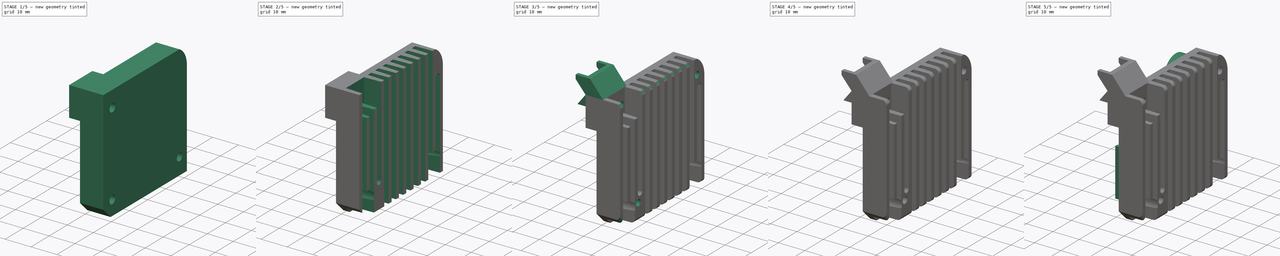
[diagram: build sequence overview — one tinted view per stage of 5, left to right]
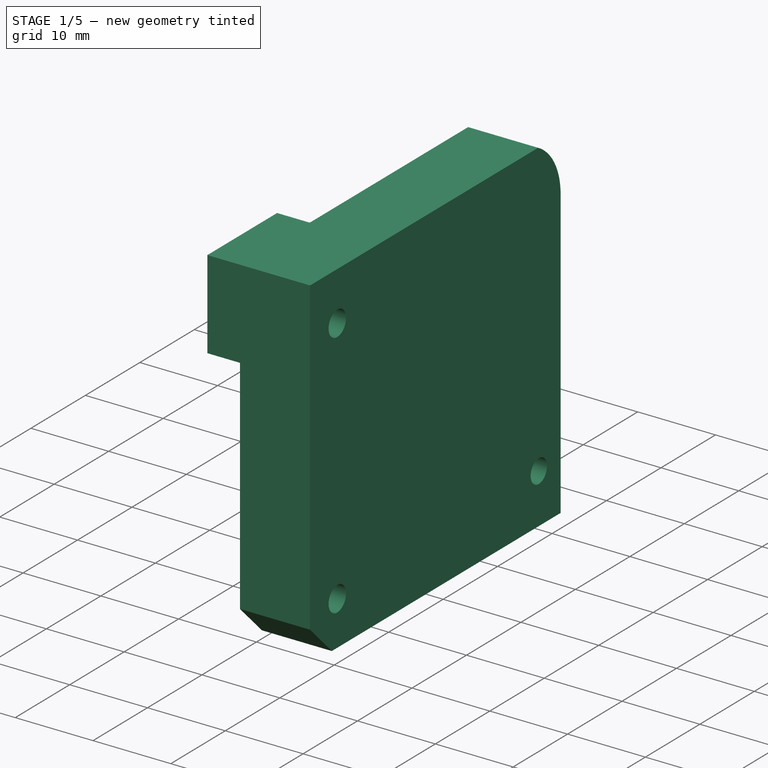
[diagram: stage 1 of 5 — iso view after this stage's code; geometry added in this stage tinted green]
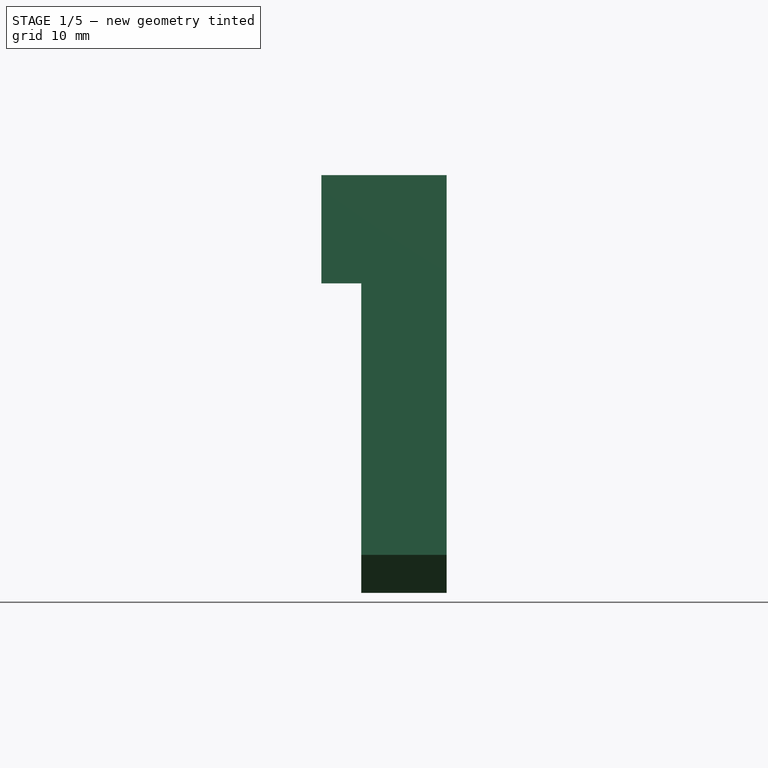
[diagram: stage 1 of 5 — front view after this stage's code; geometry added in this stage tinted green]
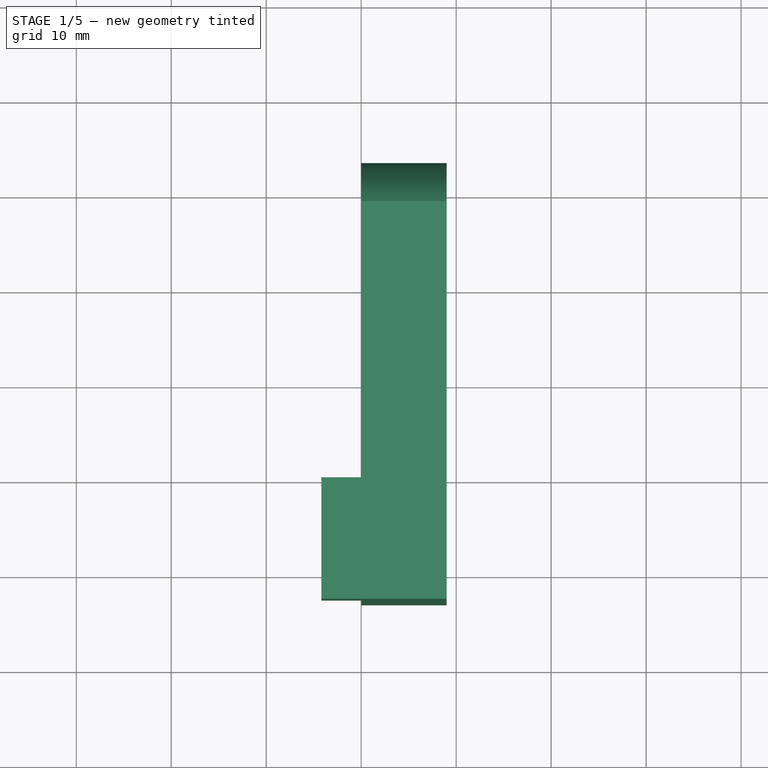
[diagram: stage 1 of 5 — top view after this stage's code; geometry added in this stage tinted green]
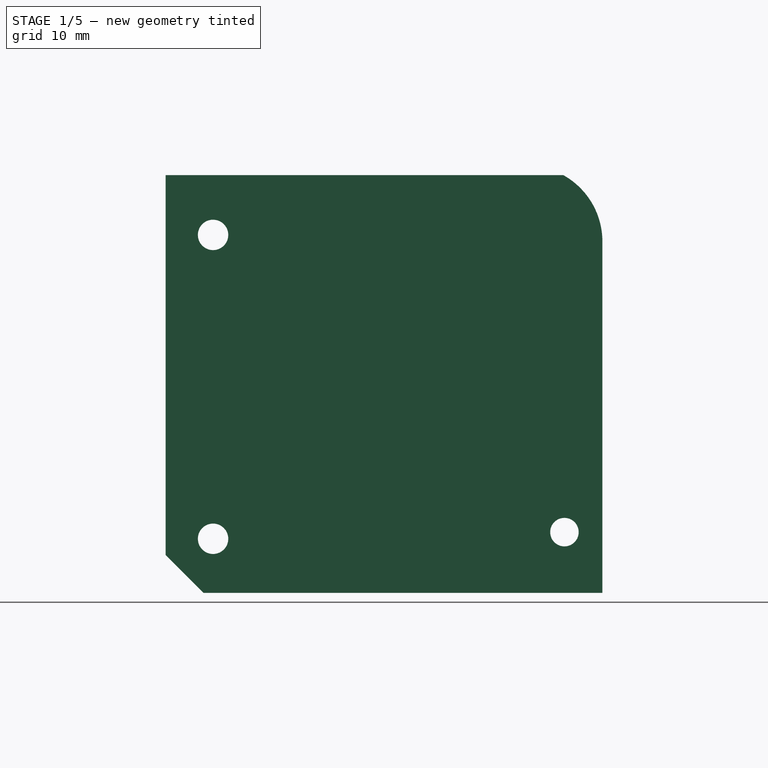
[diagram: stage 1 of 5 — right view after this stage's code; geometry added in this stage tinted green]
FCSTD DOCUMENT  (FreeCAD 2024.2R37240 (Git))
Label: Sovol SV04 Heatsink Left
License: All rights reserved
LicenseURL: https://en.wikipedia.org/wiki/All_rights_reserved
objects: Sketcher::SketchObject×18, PartDesign::Pad×8, PartDesign::Pocket×7, PartDesign::Hole×3, PartDesign::Fillet×2, PartDesign::LinearPattern×1, PartDesign::Body×1
note: 60 computed .brp shape members not serialized (recipe doc carries the construction recipe); baked Part::Feature solids carry a one-line shape summary decoded from their .brp

FEATURE [Sketcher::SketchObject] Sketch  label="Main Shape"
  AttachmentSupport = -> [YZ_Plane]
  FullyConstrained = true
  MapMode = 5
  Placement = pos=(0,0,0) rot=(0.57735,0.57735,0.57735;2.0944rad)
  sketch-geometry (6):
    g0: LineSegment StartX=-23 StartY=22 StartZ=0 EndX=-23 EndY=-18 EndZ=0
    g1: LineSegment StartX=-19 StartY=-22 StartZ=0 EndX=23 EndY=-22 EndZ=0
    g2: LineSegment StartX=23 StartY=-22 StartZ=0 EndX=23 EndY=15 EndZ=0
    g3: ArcOfCircle CenterX=15 CenterY=15 CenterZ=0 NormalX=0 NormalY=0 NormalZ=1 AngleXU=0 Radius=8 StartAngle=0 EndAngle=1.06544
    g4: LineSegment StartX=18.873 StartY=22 StartZ=0 EndX=-23 EndY=22 EndZ=0
    g5: LineSegment StartX=-23 StartY=-18 StartZ=0 EndX=-19 EndY=-22 EndZ=0
  constraints (17):
    c: Vertical(g0)
    c: Coincident(g1,g2)
    c: Vertical(g2)
    c: Tangent(g2,g3) = -1.5708
    c: Coincident(g4,g0)
    c: Horizontal(g4)
    c: Horizontal(g1)
    c: Distance(g2,g0) = 46
    c: Distance(g1,g4) = 44
    c: Coincident(g0,g5)
    c: Coincident(g5,g1)
    c: Coincident(g3,g4)
    c: Symmetric(g0,g1,g-1)
    c: Angle(g0,g5) = 0.785398
    c: DistanceX(g0,g1) = 4
    c: Radius(g3) = 8
    c: Distance(g2,g4) = 7
FEATURE [PartDesign::Pad] Pad
  Direction = (1,0,0)
  Length = 9
  Length2 = 10
  Placement = pos=(0,0,0) rot=(0.57735,0.57735,0.57735;2.0944rad)
  Profile = -> Sketch
  ReferenceAxis = -> Sketch [N_Axis]
  Refine = true
  Suppressed = false
  Type = 0
FEATURE [Sketcher::SketchObject] Sketch001
  AttachmentSupport = -> [Pad]
  FullyConstrained = false
  MapMode = 5
  Placement = pos=(9,0,0) rot=(0.57735,0.57735,0.57735;2.0944rad)
  expr: Constraints[13] = Sketch.Constraints[12]
  expr: Constraints[15] = Sketch.Constraints[15]
  expr: Constraints[17] = Sketch.Constraints[14]
  expr: Constraints[18] = Sketch.Constraints[15]
  expr: Constraints[21] = Sketch.Constraints[15]
  expr: Constraints[25] = Sketch.Constraints[13]
  expr: Constraints[26] = Sketch.Constraints[14]
  expr: Constraints[27] = Sketch.Constraints[15]
  expr: Constraints[28] = Sketch.Constraints[16]
  expr: Constraints[7] = Sketch.Constraints[7]
  expr: Constraints[8] = Sketch.Constraints[8]
  sketch-geometry (14):
    g0: LineSegment StartX=-23 StartY=22 StartZ=0 EndX=-23 EndY=-18 EndZ=0
    g1: LineSegment StartX=-19 StartY=-22 StartZ=0 EndX=23 EndY=-22 EndZ=0
    g2: LineSegment StartX=23 StartY=-22 StartZ=0 EndX=23 EndY=15 EndZ=0
    g3: ArcOfCircle CenterX=15 CenterY=15 CenterZ=0 NormalX=0 NormalY=0 NormalZ=1 AngleXU=0 Radius=8 StartAngle=0 EndAngle=1.06544
    g4: LineSegment StartX=18.873 StartY=22 StartZ=0 EndX=-23 EndY=22 EndZ=0
    g5: LineSegment StartX=-23 StartY=-18 StartZ=0 EndX=-19 EndY=-22 EndZ=0
    g6: Circle CenterX=11 CenterY=14 CenterZ=0 NormalX=0 NormalY=0 NormalZ=1 AngleXU=0 Radius=0
    g7: Circle CenterX=19 CenterY=14 CenterZ=0 NormalX=0 NormalY=0 NormalZ=1 AngleXU=0 Radius=0
    g8: Circle CenterX=19 CenterY=6 CenterZ=0 NormalX=0 NormalY=0 NormalZ=1 AngleXU=0 Radius=0
    g9: Circle CenterX=11 CenterY=6 CenterZ=0 NormalX=0 NormalY=0 NormalZ=1 AngleXU=0 Radius=0
    g10: Circle CenterX=-13 CenterY=16.4 CenterZ=0 NormalX=0 NormalY=0 NormalZ=1 AngleXU=0 Radius=1.125
    g11: Circle CenterX=19 CenterY=-15.6 CenterZ=0 NormalX=0 NormalY=0 NormalZ=1 AngleXU=0 Radius=1.125
    g12: Circle CenterX=-13 CenterY=-15.6 CenterZ=0 NormalX=0 NormalY=0 NormalZ=1 AngleXU=0 Radius=1.125
    g13: Circle CenterX=19 CenterY=16.4 CenterZ=0 NormalX=0 NormalY=0 NormalZ=1 AngleXU=0 Radius=1.5
  constraints (38):
    c: Vertical(g0)
    c: Coincident(g1,g2)
    c: Vertical(g2)
    c: Tangent(g2,g3) = -1.5708
    c: Coincident(g4,g0)
    c: Horizontal(g4)
    c: Horizontal(g1)
    c: Distance(g2,g0) = 46
    c: Distance(g1,g4) = 44
    c: Coincident(g0,g5)
    c: Coincident(g5,g1)
    c: Coincident(g3,g4)
    c: Horizontal(g6,g7)
    c: Diameter(g7) = 0
    c: Equal(g6,g7)
    c: DistanceX(g6,g7) = 8
    c: Symmetric(g0,g1,g-1)
    c: Distance(g7,g2) = 4
    c: Distance(g7,g4) = 8
    c: Equal(g8,g7)
    c: Vertical(g8,g7)
    c: DistanceY(g8,g7) = 8
    c: Equal(g9,g6)
    c: Vertical(g9,g6)
    c: Horizontal(g9,g8)
    c: Angle(g0,g5) = 0.785398
    c: DistanceX(g0,g1) = 4
    c: Radius(g3) = 8
    c: Distance(g2,g4) = 7
    c: Vertical(g10,g12)
    c: Horizontal(g12,g11)
    c: Distance(g10,g4) = 5.6
    c: Distance(g11,g2) = 4
    c: DistanceY(g12,g10) = 32
    c: DistanceX(g12,g11) = 32
    c: Horizontal(g13,g10)
    c: Vertical(g13,g11)
    c: Diameter(g13) = 3
FEATURE [Sketcher::SketchObject] Sketch002
  FullyConstrained = false
  MapMode = 5
  Placement = pos=(9,-4e-15,2e-15) rot=(0.57735,0.57735,0.57735;2.0944rad)
  expr: Constraints[13] = Sketch001.Constraints[13]
  expr: Constraints[15] = Sketch001.Constraints[15]
  expr: Constraints[17] = Sketch001.Constraints[17]
  expr: Constraints[18] = Sketch001.Constraints[18]
  expr: Constraints[21] = Sketch001.Constraints[21]
  expr: Constraints[25] = Sketch001.Constraints[25]
  expr: Constraints[26] = Sketch001.Constraints[26]
  expr: Constraints[27] = Sketch001.Constraints[27]
  expr: Constraints[28] = Sketch001.Constraints[28]
  expr: Constraints[31] = Sketch001.Constraints[31]
  expr: Constraints[32] = Sketch001.Constraints[32]
  expr: Constraints[33] = Sketch001.Constraints[33]
  expr: Constraints[34] = Sketch001.Constraints[34]
  expr: Constraints[37] = Sketch001.Constraints[37]
  expr: Constraints[7] = Sketch001.Constraints[7]
  expr: Constraints[8] = Sketch001.Constraints[8]
  sketch-geometry (15):
    g0: Circle CenterX=19 CenterY=-15.6 CenterZ=0 NormalX=0 NormalY=0 NormalZ=1 AngleXU=0 Radius=1.5
    g1: LineSegment StartX=-23 StartY=22 StartZ=0 EndX=-23 EndY=-18 EndZ=0
    g2: LineSegment StartX=-19 StartY=-22 StartZ=0 EndX=23 EndY=-22 EndZ=0
    g3: LineSegment StartX=23 StartY=-22 StartZ=0 EndX=23 EndY=15 EndZ=0
    g4: ArcOfCircle CenterX=15 CenterY=15 CenterZ=0 NormalX=0 NormalY=0 NormalZ=1 AngleXU=0 Radius=8 StartAngle=0 EndAngle=1.06544
    g5: LineSegment StartX=18.873 StartY=22 StartZ=0 EndX=-23 EndY=22 EndZ=0
    g6: LineSegment StartX=-23 StartY=-18 StartZ=0 EndX=-19 EndY=-22 EndZ=0
    g7: Circle CenterX=11 CenterY=14 CenterZ=0 NormalX=0 NormalY=0 NormalZ=1 AngleXU=0 Radius=0
    g8: Circle CenterX=19 CenterY=14 CenterZ=0 NormalX=0 NormalY=0 NormalZ=1 AngleXU=0 Radius=0
    g9: Circle CenterX=19 CenterY=6 CenterZ=0 NormalX=0 NormalY=0 NormalZ=1 AngleXU=0 Radius=0
    g10: Circle CenterX=11 CenterY=6 CenterZ=0 NormalX=0 NormalY=0 NormalZ=1 AngleXU=0 Radius=0
    g11: Circle CenterX=-13 CenterY=16.4 CenterZ=0 NormalX=0 NormalY=0 NormalZ=1 AngleXU=0 Radius=1.125
    g12: Circle CenterX=19 CenterY=-15.6 CenterZ=0 NormalX=0 NormalY=0 NormalZ=1 AngleXU=0 Radius=1.125
    g13: Circle CenterX=-13 CenterY=-15.6 CenterZ=0 NormalX=0 NormalY=0 NormalZ=1 AngleXU=0 Radius=1.125
    g14: Circle CenterX=19 CenterY=16.4 CenterZ=0 NormalX=0 NormalY=0 NormalZ=1 AngleXU=0 Radius=1.5
  constraints (40):
    c: Vertical(g1)
    c: Coincident(g2,g3)
    c: Vertical(g3)
    c: Tangent(g3,g4) = -1.5708
    c: Coincident(g5,g1)
    c: Horizontal(g5)
    c: Horizontal(g2)
    c: Distance(g3,g1) = 46
    c: Distance(g2,g5) = 44
    c: Coincident(g1,g6)
    c: Coincident(g6,g2)
    c: Coincident(g4,g5)
    c: Horizontal(g7,g8)
    c: Diameter(g8) = 0
    c: Equal(g7,g8)
    c: DistanceX(g7,g8) = 8
    c: Symmetric(g1,g2,g-1)
    c: Distance(g8,g3) = 4
    c: Distance(g8,g5) = 8
    c: Equal(g9,g8)
    c: Vertical(g9,g8)
    c: DistanceY(g9,g8) = 8
    c: Equal(g10,g7)
    c: Vertical(g10,g7)
    c: Horizontal(g10,g9)
    c: Angle(g1,g6) = 0.785398
    c: DistanceX(g1,g2) = 4
    c: Radius(g4) = 8
    c: Distance(g3,g5) = 7
    c: Vertical(g11,g13)
    c: Horizontal(g13,g12)
    c: Distance(g11,g5) = 5.6
    c: Distance(g12,g3) = 4
    c: DistanceY(g13,g11) = 32
    c: DistanceX(g13,g12) = 32
    c: Horizontal(g14,g11)
    c: Vertical(g14,g12)
    c: Diameter(g14) = 3
    c: Diameter(g0) = 3
    c: Coincident(g12,g0)
FEATURE [PartDesign::Pocket] Pocket
  BaseFeature = -> Pad
  Direction = (-1,0,0)
  Length = 5
  Length2 = 5
  Placement = pos=(0,0,0) rot=(0.57735,0.57735,0.57735;2.0944rad)
  Profile = -> Sketch002
  ReferenceAxis = -> Sketch002 [N_Axis]
  Refine = true
  Suppressed = false
  Type = 1
FEATURE [Sketcher::SketchObject] Sketch003
  AttachmentSupport = -> [Pocket]
  ExternalGeometry = -> [Pocket]
  FullyConstrained = false
  MapMode = 5
  Placement = pos=(0,0,0) rot=(0.57735,0.57735,-0.57735;4.18879rad)
  sketch-geometry (5):
    g0: LineSegment StartX=-10.2 StartY=-22 StartZ=0 EndX=-10.2 EndY=-18.8698 EndZ=0
    g1: ArcOfCircle CenterX=-18.4698 CenterY=-18.8698 CenterZ=0 NormalX=0 NormalY=0 NormalZ=1 AngleXU=0 Radius=8.26977 StartAngle=-3.98579e-11 EndAngle=1.5708
    g2: LineSegment StartX=-18.4698 StartY=-10.6 StartZ=0 EndX=-23 EndY=-10.6 EndZ=0
    g3: LineSegment StartX=-23 StartY=-10.6 StartZ=0 EndX=-23 EndY=-22 EndZ=0
    g4: LineSegment StartX=-23 StartY=-22 StartZ=0 EndX=-10.2 EndY=-22 EndZ=0
  constraints (13):
    c: Vertical(g0)
    c: Tangent(g0,g1) = -1.5708
    c: Tangent(g1,g2) = -1.5708
    c: Coincident(g2,g3)
    c: Vertical(g3)
    c: Coincident(g3,g4)
    c: Coincident(g4,g0)
    c: Horizontal(g4)
    c: Horizontal(g2)
    c: PointOnObject(g2,g-4)
    c: DistanceX(g4,g4) = 12.8
    c: PointOnObject(g0,g-3)
    c: DistanceY(g3,g3) = 11.4
FEATURE [PartDesign::Pad] Pad001
  BaseFeature = -> Pocket
  Direction = (-1,0,0)
  Length = 4.2
  Length2 = 10
  Placement = pos=(0,0,0) rot=(0.57735,0.57735,0.57735;2.0944rad)
  Profile = -> Sketch003
  ReferenceAxis = -> Sketch003 [N_Axis]
  Refine = true
  Suppressed = false
  Type = 0
FEATURE [Sketcher::SketchObject] Sketch004
  FullyConstrained = false
  MapMode = 5
  Placement = pos=(9,0,0) rot=(0.57735,0.57735,0.57735;2.0944rad)
  expr: Constraints[13] = Sketch001.Constraints[13]
  expr: Constraints[15] = Sketch001.Constraints[15]
  expr: Constraints[17] = Sketch001.Constraints[17]
  expr: Constraints[18] = Sketch001.Constraints[18]
  expr: Constraints[21] = Sketch001.Constraints[21]
  expr: Constraints[25] = Sketch001.Constraints[25]
  expr: Constraints[26] = Sketch001.Constraints[26]
  expr: Constraints[27] = Sketch001.Constraints[27]
  expr: Constraints[28] = Sketch001.Constraints[28]
  expr: Constraints[31] = Sketch001.Constraints[31]
  expr: Constraints[32] = Sketch001.Constraints[32]
  expr: Constraints[33] = Sketch001.Constraints[33]
  expr: Constraints[34] = Sketch001.Constraints[34]
  expr: Constraints[37] = Sketch001.Constraints[37]
  expr: Constraints[7] = Sketch001.Constraints[7]
  expr: Constraints[8] = Sketch001.Constraints[8]
  sketch-geometry (15):
    g0: LineSegment StartX=-23 StartY=22 StartZ=0 EndX=-23 EndY=-18 EndZ=0
    g1: LineSegment StartX=-19 StartY=-22 StartZ=0 EndX=23 EndY=-22 EndZ=0
    g2: LineSegment StartX=23 StartY=-22 StartZ=0 EndX=23 EndY=15 EndZ=0
    g3: ArcOfCircle CenterX=15 CenterY=15 CenterZ=0 NormalX=0 NormalY=0 NormalZ=1 AngleXU=0 Radius=8 StartAngle=0 EndAngle=1.06544
    g4: LineSegment StartX=18.873 StartY=22 StartZ=0 EndX=-23 EndY=22 EndZ=0
    g5: LineSegment StartX=-23 StartY=-18 StartZ=0 EndX=-19 EndY=-22 EndZ=0
    g6: Circle CenterX=11 CenterY=14 CenterZ=0 NormalX=0 NormalY=0 NormalZ=1 AngleXU=0 Radius=0
    g7: Circle CenterX=19 CenterY=14 CenterZ=0 NormalX=0 NormalY=0 NormalZ=1 AngleXU=0 Radius=0
    g8: Circle CenterX=19 CenterY=6 CenterZ=0 NormalX=0 NormalY=0 NormalZ=1 AngleXU=0 Radius=0
    g9: Circle CenterX=11 CenterY=6 CenterZ=0 NormalX=0 NormalY=0 NormalZ=1 AngleXU=0 Radius=0
    g10: Circle CenterX=-13 CenterY=16.4 CenterZ=0 NormalX=0 NormalY=0 NormalZ=1 AngleXU=0 Radius=1.125
    g11: Circle CenterX=19 CenterY=-15.6 CenterZ=0 NormalX=0 NormalY=0 NormalZ=1 AngleXU=0 Radius=1.125
    g12: Circle CenterX=-13 CenterY=-15.6 CenterZ=0 NormalX=0 NormalY=0 NormalZ=1 AngleXU=0 Radius=1.125
    g13: Circle CenterX=19 CenterY=16.4 CenterZ=0 NormalX=0 NormalY=0 NormalZ=1 AngleXU=0 Radius=1.5
    g14: Circle CenterX=19 CenterY=16.4 CenterZ=0 NormalX=0 NormalY=0 NormalZ=1 AngleXU=0 Radius=1.5
  constraints (40):
    c: Vertical(g0)
    c: Coincident(g1,g2)
    c: Vertical(g2)
    c: Tangent(g2,g3) = -1.5708
    c: Coincident(g4,g0)
    c: Horizontal(g4)
    c: Horizontal(g1)
    c: Distance(g2,g0) = 46
    c: Distance(g1,g4) = 44
    c: Coincident(g0,g5)
    c: Coincident(g5,g1)
    c: Coincident(g3,g4)
    c: Horizontal(g6,g7)
    c: Diameter(g7) = 0
    c: Equal(g6,g7)
    c: DistanceX(g6,g7) = 8
    c: Symmetric(g0,g1,g-1)
    c: Distance(g7,g2) = 4
    c: Distance(g7,g4) = 8
    c: Equal(g8,g7)
    c: Vertical(g8,g7)
    c: DistanceY(g8,g7) = 8
    c: Equal(g9,g6)
    c: Vertical(g9,g6)
    c: Horizontal(g9,g8)
    c: Angle(g0,g5) = 0.785398
    c: DistanceX(g0,g1) = 4
    c: Radius(g3) = 8
    c: Distance(g2,g4) = 7
    c: Vertical(g10,g12)
    c: Horizontal(g12,g11)
    c: Distance(g10,g4) = 5.6
    c: Distance(g11,g2) = 4
    c: DistanceY(g12,g10) = 32
    c: DistanceX(g12,g11) = 32
    c: Horizontal(g13,g10)
    c: Vertical(g13,g11)
    c: Diameter(g13) = 3
    c: Equal(g14,g13)
    c: Coincident(g14,g13)
FEATURE [Sketcher::SketchObject] Sketch005
  FullyConstrained = false
  MapMode = 5
  Placement = pos=(9,0,0) rot=(0.57735,0.57735,0.57735;2.0944rad)
  sketch-geometry (2):
    g0: Circle CenterX=-18 CenterY=15.7 CenterZ=0 NormalX=0 NormalY=0 NormalZ=1 AngleXU=0 Radius=1.6
    g1: Circle CenterX=-18 CenterY=-16.3 CenterZ=0 NormalX=0 NormalY=0 NormalZ=1 AngleXU=0 Radius=1.6
  constraints (4):
    c: Equal(g0,g1)
    c: Diameter(g0) = 3.2
    c: Vertical(g0,g1)
    c: DistanceY(g1,g0) = 32
FEATURE [PartDesign::Pocket] Pocket001
  BaseFeature = -> Pad001
  Direction = (-1,0,0)
  Length = 5
  Length2 = 5
  Placement = pos=(0,0,0) rot=(0.57735,0.57735,0.57735;2.0944rad)
  Profile = -> Sketch005
  ReferenceAxis = -> Sketch005 [N_Axis]
  Refine = true
  Suppressed = false
  Type = 1
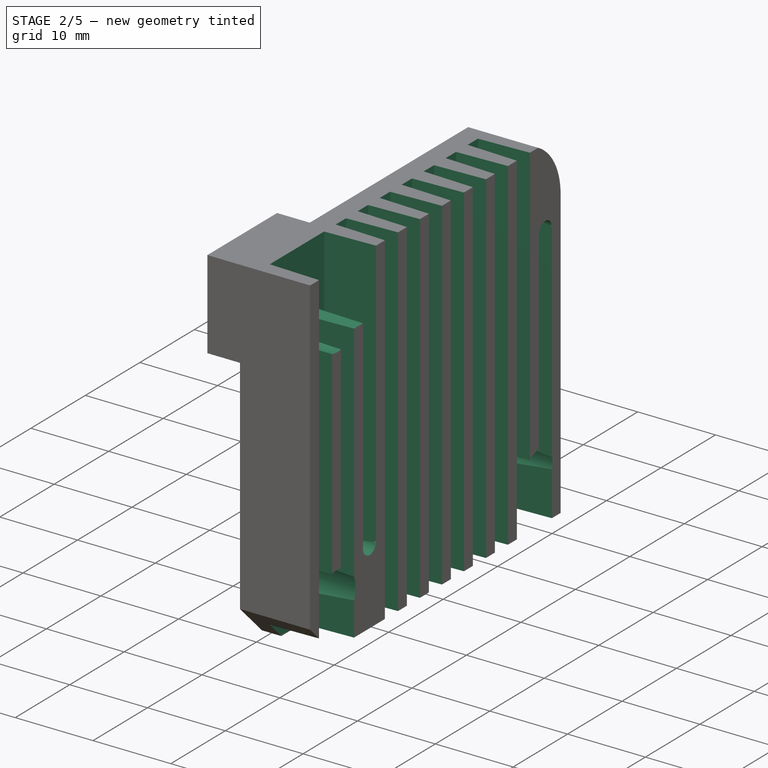
[diagram: stage 2 of 5 — iso view after this stage's code; geometry added in this stage tinted green]
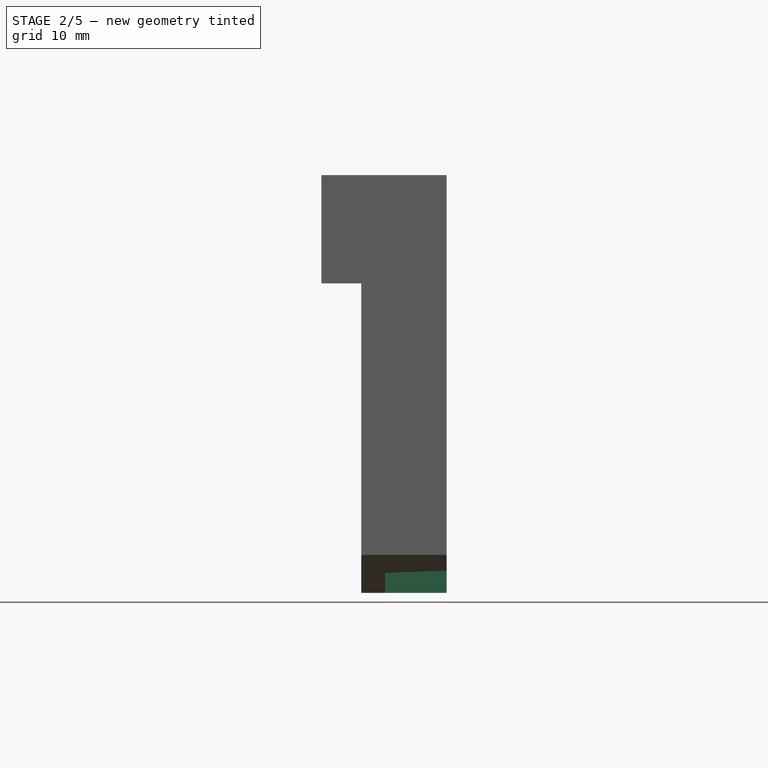
[diagram: stage 2 of 5 — front view after this stage's code; geometry added in this stage tinted green]
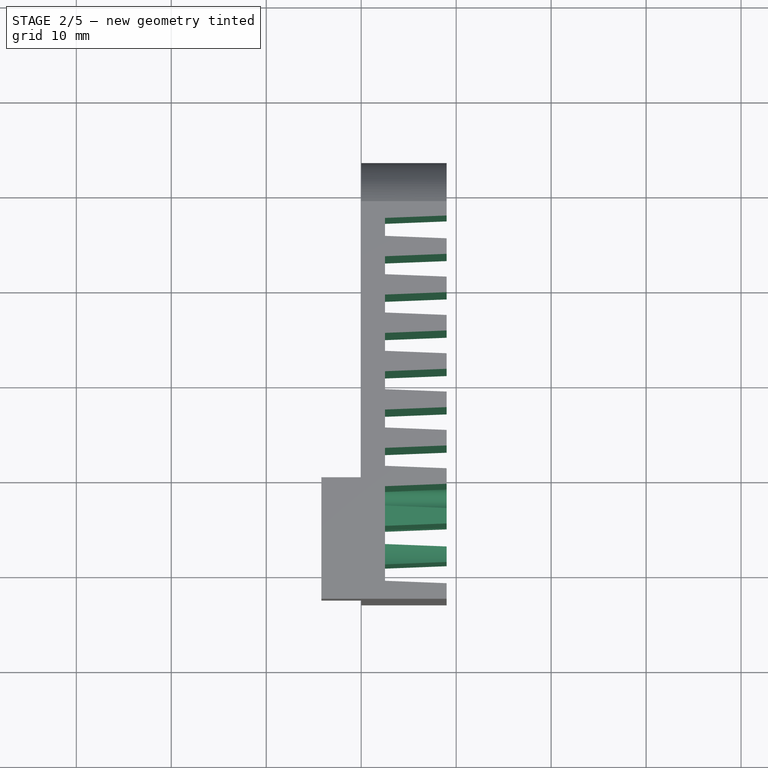
[diagram: stage 2 of 5 — top view after this stage's code; geometry added in this stage tinted green]
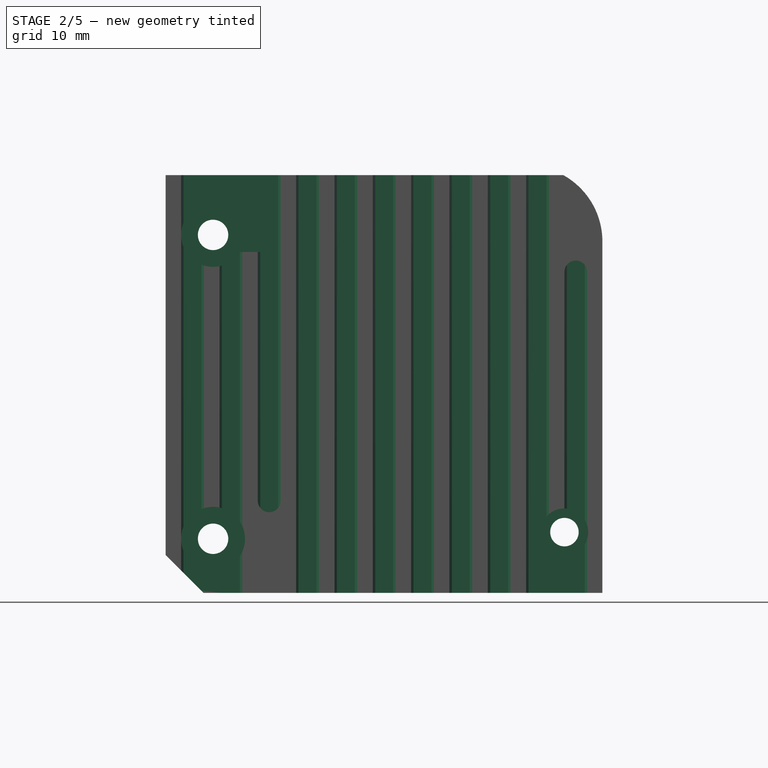
[diagram: stage 2 of 5 — right view after this stage's code; geometry added in this stage tinted green]
FEATURE [Sketcher::SketchObject] Sketch006
  AttachmentSupport = -> [Pocket001]
  FullyConstrained = false
  MapMode = 5
  Placement = pos=(9,0,0) rot=(0.57735,0.57735,0.57735;2.0944rad)
  sketch-geometry (4):
    g0: LineSegment StartX=19 StartY=27 StartZ=0 EndX=19 EndY=-27 EndZ=0
    g1: LineSegment StartX=19 StartY=-27 StartZ=0 EndX=21.4 EndY=-27 EndZ=0
    g2: LineSegment StartX=21.4 StartY=-27 StartZ=0 EndX=21.4 EndY=27 EndZ=0
    g3: LineSegment StartX=21.4 StartY=27 StartZ=0 EndX=19 EndY=27 EndZ=0
  constraints (9):
    c: Coincident(g0,g1)
    c: Coincident(g1,g2)
    c: Vertical(g2)
    c: Coincident(g2,g3)
    c: Coincident(g3,g0)
    c: Distance(g1,g1) = 2.4
    c: Horizontal(g1)
    c: Horizontal(g3)
    c: Vertical(g0)
FEATURE [PartDesign::Pocket] Pocket002
  BaseFeature = -> Pocket001
  Direction = (-1,0,0)
  Length = 6.5
  Length2 = 5
  Offset = -2.5
  Placement = pos=(0,0,0) rot=(0.57735,0.57735,0.57735;2.0944rad)
  Profile = -> Sketch006
  ReferenceAxis = -> Sketch006 [N_Axis]
  Refine = true
  Suppressed = false
  TaperAngle = -2.25
  Type = 0
FEATURE [PartDesign::LinearPattern] LinearPattern
  BaseFeature = -> Pocket002
  Direction = -> Y_Axis
  Length = 44.4
  Mode = 0
  Occurrences = 12
  Offset = 4.03636
  Originals = -> [Pocket002]
  Placement = pos=(0,0,0) rot=(0.57735,0.57735,0.57735;2.0944rad)
  Refine = true
  Reversed = true
  Suppressed = false
FEATURE [Sketcher::SketchObject] Sketch007
  AttachmentSupport = -> [LinearPattern]
  ExternalGeometry = -> [LinearPattern,Sketch,Sketch004,Sketch001]
  FullyConstrained = true
  MapMode = 5
  Placement = pos=(9,0,0) rot=(0.57735,0.57735,0.57735;2.0944rad)
  sketch-geometry (8):
    g0: ArcOfCircle CenterX=20.2 CenterY=11.8 CenterZ=0 NormalX=0 NormalY=0 NormalZ=1 AngleXU=0 Radius=1.2 StartAngle=2.954e-13 EndAngle=3.14159
    g1: LineSegment StartX=21.4 StartY=11.8 StartZ=0 EndX=21.4 EndY=19.8 EndZ=0
    g2: ArcOfCircle CenterX=15 CenterY=15 CenterZ=0 NormalX=0 NormalY=0 NormalZ=1 AngleXU=0 Radius=8 StartAngle=0.643501 EndAngle=1.0472
    g3: LineSegment StartX=19 StartY=21.9282 StartZ=0 EndX=19 EndY=11.8 EndZ=0
    g4: ArcOfCircle CenterX=-12.0909 CenterY=-12.3 CenterZ=0 NormalX=0 NormalY=0 NormalZ=1 AngleXU=0 Radius=1.2 StartAngle=3.14159 EndAngle=6.28319
    g5: LineSegment StartX=-13.2909 StartY=-12.3 StartZ=0 EndX=-13.2909 EndY=-22 EndZ=0
    g6: LineSegment StartX=-13.2909 StartY=-22 StartZ=0 EndX=-10.8909 EndY=-22 EndZ=0
    g7: LineSegment StartX=-10.8909 StartY=-22 StartZ=0 EndX=-10.8909 EndY=-12.3 EndZ=0
  constraints (19):
    c: Tangent(g0,g-4) = -1.5708
    c: Tangent(g0,g-6) = -1.5708
    c: Coincident(g0,g1)
    c: Coincident(g2,g-5)
    c: Coincident(g2,g1)
    c: Coincident(g2,g3)
    c: Coincident(g-4,g2)
    c: PointOnObject(g1,g-6)
    c: Coincident(g3,g0)
    c: Distance(g0,g-11) = 9
    c: Coincident(g5,g6)
    c: Coincident(g6,g7)
    c: Vertical(g7)
    c: Tangent(g7,g4) = -1.5708
    c: Tangent(g4,g5) = -1.5708
    c: PointOnObject(g4,g-9)
    c: Coincident(g5,g-9)
    c: Coincident(g6,g-12)
    c: Distance(g4,g6) = 8.5
FEATURE [PartDesign::Pad] Pad002  label="Fin Fill"
  BaseFeature = -> LinearPattern
  Direction = (1,0,0)
  Length = 10
  Length2 = 10
  Placement = pos=(0,0,0) rot=(0.57735,0.57735,0.57735;2.0944rad)
  Profile = -> Sketch007
  ReferenceAxis = -> Sketch007 [N_Axis]
  Refine = true
  Suppressed = false
  Type = 3
  UpToFace = -> LinearPattern [Face19]
FEATURE [Sketcher::SketchObject] Sketch008
  AttachmentSupport = -> [Pad002]
  ExternalGeometry = -> [Sketch005,Sketch001,Pad002]
  FullyConstrained = false
  MapMode = 5
  Placement = pos=(9,0,0) rot=(0.57735,0.57735,0.57735;2.0944rad)
  sketch-geometry (13):
    g0: ArcOfCircle CenterX=-18 CenterY=-16.3 CenterZ=0 NormalX=0 NormalY=0 NormalZ=1 AngleXU=0 Radius=3.36364 StartAngle=4.99194 EndAngle=10.6247
    g1: ArcOfCircle CenterX=-18 CenterY=15.7 CenterZ=0 NormalX=0 NormalY=0 NormalZ=1 AngleXU=0 Radius=3.36364 StartAngle=1.94165 EndAngle=5.71852
    g2: ArcOfCircle CenterX=19 CenterY=-15.6 CenterZ=0 NormalX=0 NormalY=0 NormalZ=1 AngleXU=0 Radius=2.5 StartAngle=4.81472 EndAngle=10.1373
    g3: LineSegment StartX=-17.0719 StartY=-19.5331 StartZ=0 EndX=-17.0719 EndY=-22 EndZ=0
    g4: LineSegment StartX=-17.0719 StartY=-22 StartZ=0 EndX=-19.219 EndY=-22 EndZ=0
    g5: LineSegment StartX=-19.219 StartY=-22 StartZ=0 EndX=-19.219 EndY=-19.435 EndZ=0
    g6: LineSegment StartX=-15.1585 StartY=13.9 StartZ=0 EndX=-11.1463 EndY=13.9 EndZ=0
    g7: LineSegment StartX=-11.1463 StartY=13.9 StartZ=0 EndX=-11.1463 EndY=22 EndZ=0
    g8: LineSegment StartX=-11.1463 StartY=22 StartZ=0 EndX=-19.219 EndY=22 EndZ=0
    g9: LineSegment StartX=-19.219 StartY=22 StartZ=0 EndX=-19.219 EndY=18.835 EndZ=0
    g10: LineSegment StartX=19.2554 StartY=-22 StartZ=0 EndX=17.1083 EndY=-22 EndZ=0
    g11: LineSegment StartX=17.1083 StartY=-22 StartZ=0 EndX=17.1083 EndY=-17.2344 EndZ=0
    g12: LineSegment StartX=19.2554 StartY=-22 StartZ=0 EndX=19.2554 EndY=-18.0869 EndZ=0
  constraints (35):
    c: Coincident(g0,g-5)
    c: Coincident(g1,g-3)
    c: Coincident(g2,g-6)
    c: Equal(g1,g0)
    c: Tangent(g0,g-8)
    c: Coincident(g3,g4)
    c: Coincident(g4,g5)
    c: PointOnObject(g5,g0)
    c: Vertical(g5)
    c: PointOnObject(g-10,g5)
    c: Coincident(g3,g-9)
    c: Horizontal(g4)
    c: PointOnObject(g0,g-10)
    c: Coincident(g6,g7)
    c: Vertical(g7)
    c: Coincident(g7,g8)
    c: Coincident(g8,g9)
    c: Coincident(g8,g-11)
    c: PointOnObject(g9,g-11)
    c: Horizontal(g6)
    c: PointOnObject(g6,g-12)
    c: Coincident(g1,g6)
    c: Coincident(g1,g9)
    c: Distance(g4,g6) = 35.9
    c: Coincident(g0,g3)
    c: PointOnObject(g0,g-9)
    c: Diameter(g2) = 5
    c: Coincident(g-15,g10)
    c: Coincident(g10,g-16)
    c: Coincident(g10,g11)
    c: PointOnObject(g11,g-16)
    c: Coincident(g10,g12)
    c: PointOnObject(g12,g-15)
    c: Coincident(g2,g11)
    c: Coincident(g2,g12)
FEATURE [PartDesign::Pocket] Pocket003
  BaseFeature = -> Pad002
  Direction = (-1,0,0)
  Length = 0
  Length2 = 5
  Placement = pos=(0,0,0) rot=(0.57735,0.57735,0.57735;2.0944rad)
  Profile = -> Sketch008
  ReferenceAxis = -> Sketch008 [N_Axis]
  Refine = true
  Suppressed = false
  Type = 3
  UpToFace = -> Pad002 [Face46]
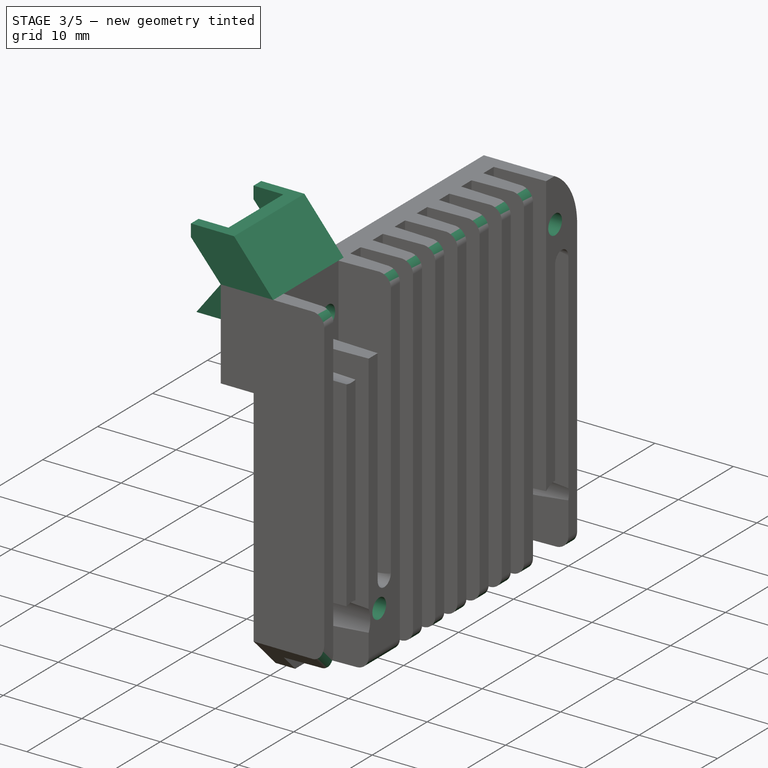
[diagram: stage 3 of 5 — iso view after this stage's code; geometry added in this stage tinted green]
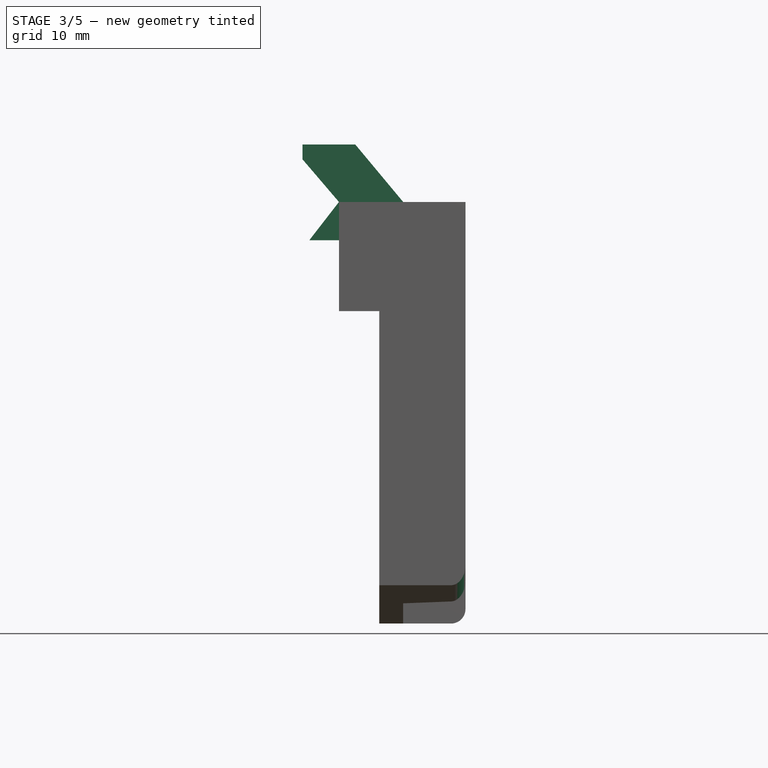
[diagram: stage 3 of 5 — front view after this stage's code; geometry added in this stage tinted green]
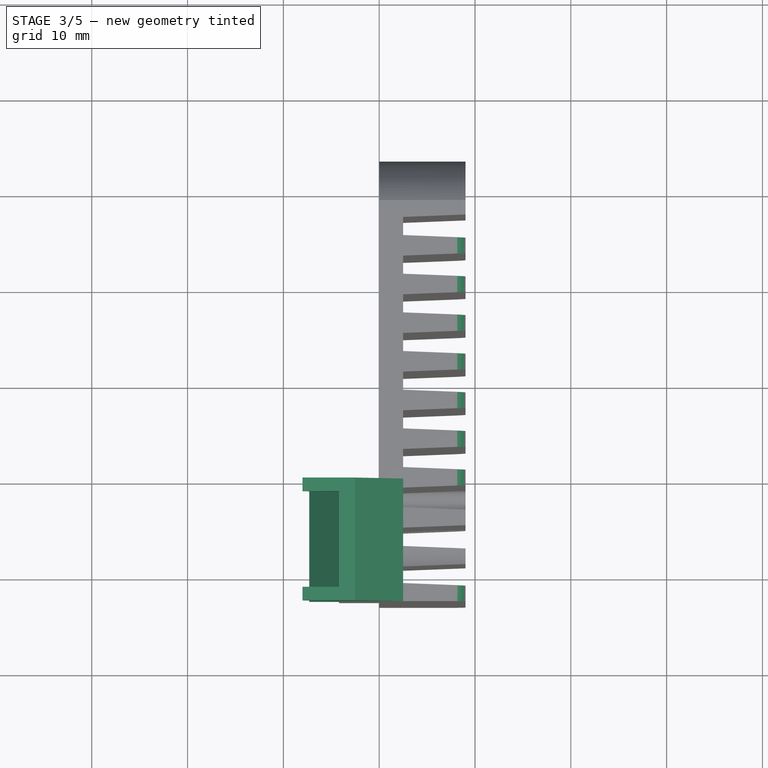
[diagram: stage 3 of 5 — top view after this stage's code; geometry added in this stage tinted green]
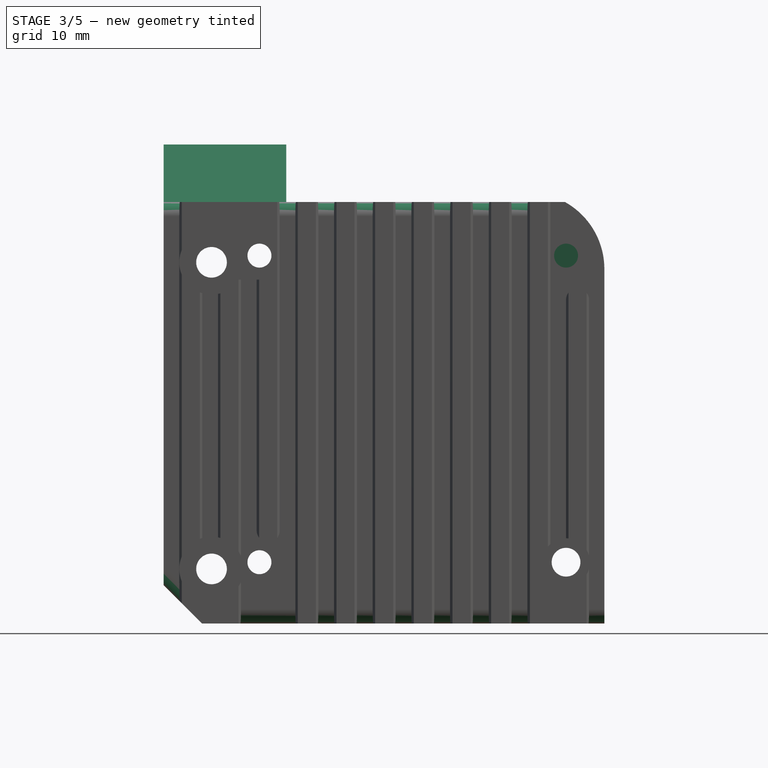
[diagram: stage 3 of 5 — right view after this stage's code; geometry added in this stage tinted green]
FEATURE [PartDesign::Hole] Hole
  BaseFeature = -> Pocket003
  CustomThreadClearance = 0
  Depth = 25
  DepthType = 0
  Diameter = 2.5
  DrillForDepth = false
  DrillPoint = 1
  DrillPointAngle = 118
  HoleCutCountersinkAngle = 90
  HoleCutCustomValues = false
  HoleCutDepth = 0
  HoleCutDiameter = 6.1
  HoleCutType = 0
  ModelThread = false
  Placement = pos=(0,0,0) rot=(0.57735,0.57735,0.57735;2.0944rad)
  Profile = -> Sketch001
  Refine = true
  Suppressed = false
  Tapered = false
  TaperedAngle = 90
  ThreadClass = 0
  ThreadDepth = 25
  ThreadDepthType = 0
  ThreadDirection = 0
  ThreadFit = 0
  ThreadSize = 9
  ThreadType = 1
  Threaded = true
  UseCustomThreadClearance = false
FEATURE [PartDesign::Hole] Hole001
  BaseFeature = -> Hole
  CustomThreadClearance = 0
  Depth = 7
  DepthType = 0
  Diameter = 2.5
  DrillForDepth = false
  DrillPoint = 0
  DrillPointAngle = 118
  HoleCutCountersinkAngle = 90
  HoleCutCustomValues = false
  HoleCutDepth = 0
  HoleCutDiameter = 6.1
  HoleCutType = 0
  ModelThread = false
  Placement = pos=(0,0,0) rot=(0.57735,0.57735,0.57735;2.0944rad)
  Profile = -> Sketch004
  Refine = true
  Suppressed = false
  Tapered = false
  TaperedAngle = 90
  ThreadClass = 0
  ThreadDepth = 7
  ThreadDepthType = 0
  ThreadDirection = 0
  ThreadFit = 0
  ThreadSize = 9
  ThreadType = 1
  Threaded = true
  UseCustomThreadClearance = false
FEATURE [PartDesign::Fillet] Fillet
  Base = -> Hole001 [Edge5,Edge20,Edge24,Edge28,Edge32,Edge36,Edge40,Edge44,Edge48,Edge90,Edge129,Edge125,Edge121,Edge117,Edge113,Edge109,Edge105]
  BaseFeature = -> Hole001
  Placement = pos=(0,0,0) rot=(0.57735,0.57735,0.57735;2.0944rad)
  Radius = 1.5
  Refine = true
  SupportTransform = false
  Suppressed = false
  UseAllEdges = false
FEATURE [Sketcher::SketchObject] Sketch009
  AttachmentSupport = -> [Fillet]
  ExternalGeometry = -> [Fillet]
  FullyConstrained = false
  MapMode = 5
  Placement = pos=(-1.7e-14,-23,0) rot=(0.57735,0.57735,-0.57735;2.0944rad)
  sketch-geometry (8):
    g0: LineSegment StartX=-22 StartY=2.5 StartZ=0 EndX=-28 EndY=-2.5 EndZ=0
    g1: LineSegment StartX=-28 StartY=-2.5 StartZ=0 EndX=-28 EndY=-8 EndZ=0
    g2: LineSegment StartX=-28 StartY=-8 StartZ=0 EndX=-26.4413 EndY=-8 EndZ=0
    g3: LineSegment StartX=-26.4413 StartY=-8 StartZ=0 EndX=-22 EndY=-4.2 EndZ=0
    g4: LineSegment StartX=-22 StartY=-4.2 StartZ=0 EndX=-18 EndY=-7.3 EndZ=0
    g5: LineSegment StartX=-18 StartY=-7.3 StartZ=0 EndX=-18 EndY=-4.2 EndZ=0
    g6: LineSegment StartX=-18 StartY=-4.2 StartZ=0 EndX=-22 EndY=-4.2 EndZ=0
    g7: LineSegment StartX=-22 StartY=-4.2 StartZ=0 EndX=-22 EndY=2.5 EndZ=0
  constraints (20):
    c: Coincident(g0,g-3)
    c: Coincident(g0,g1)
    c: Vertical(g1)
    c: Coincident(g1,g2)
    c: Horizontal(g2)
    c: Coincident(g2,g3)
    c: Coincident(g3,g-5)
    c: Coincident(g3,g4)
    c: Coincident(g4,g5)
    c: PointOnObject(g5,g-5)
    c: Coincident(g5,g6)
    c: Coincident(g6,g3)
    c: Coincident(g6,g7)
    c: Coincident(g7,g0)
    c: Vertical(g5)
    c: DistanceY(g0,g0) = 5
    c: Distance(g0,g7) = 6
    c: Distance(g-6,g2) = 17
    c: Distance(g1,g5) = 10
    c: Distance(g4,g-6) = 16.3
FEATURE [PartDesign::Pad] Pad003
  BaseFeature = -> Fillet
  Direction = (-1e-15,-1,1e-16)
  Length = 10
  Length2 = 10
  Placement = pos=(0,0,0) rot=(0.57735,0.57735,0.57735;2.0944rad)
  Profile = -> Sketch009
  ReferenceAxis = -> Sketch009 [N_Axis]
  Refine = true
  Suppressed = false
  Type = 3
  UpToFace = -> Fillet [Face63]
FEATURE [Sketcher::SketchObject] Sketch010
  AttachmentSupport = -> [Pad003]
  ExternalGeometry = -> [Pad003]
  FullyConstrained = true
  MapMode = 5
  Placement = pos=(4.8e-15,3.1e-15,28) rot=(0,0,-1;1.5708rad)
  sketch-geometry (5):
    g0: LineSegment StartX=11.6 StartY=-8 StartZ=0 EndX=11.6 EndY=-4.2 EndZ=0
    g1: LineSegment StartX=11.6 StartY=-4.2 StartZ=0 EndX=21.6 EndY=-4.2 EndZ=0
    g2: LineSegment StartX=21.6 StartY=-4.2 StartZ=0 EndX=21.6 EndY=-8 EndZ=0
    g3: LineSegment StartX=21.6 StartY=-8 StartZ=0 EndX=11.6 EndY=-8 EndZ=0
    g4: GeomPoint X=16.6 Y=-4.2 Z=0
  constraints (12):
    c: Vertical(g0)
    c: Coincident(g0,g1)
    c: Horizontal(g1)
    c: Coincident(g1,g2)
    c: Vertical(g2)
    c: Coincident(g2,g3)
    c: Coincident(g3,g0)
    c: Horizontal(g3)
    c: PointOnObject(g2,g-4)
    c: Symmetric(g1,g1,g4)
    c: Symmetric(g-3,g-3,g4)
    c: DistanceX(g3,g3) = 10
FEATURE [PartDesign::Pocket] Pocket004
  BaseFeature = -> Pad003
  Direction = (0,0,-1)
  Length = 0
  Length2 = 5
  Placement = pos=(0,0,0) rot=(0.57735,0.57735,0.57735;2.0944rad)
  Profile = -> Sketch010
  ReferenceAxis = -> Sketch010 [N_Axis]
  Refine = true
  Suppressed = false
  Type = 2
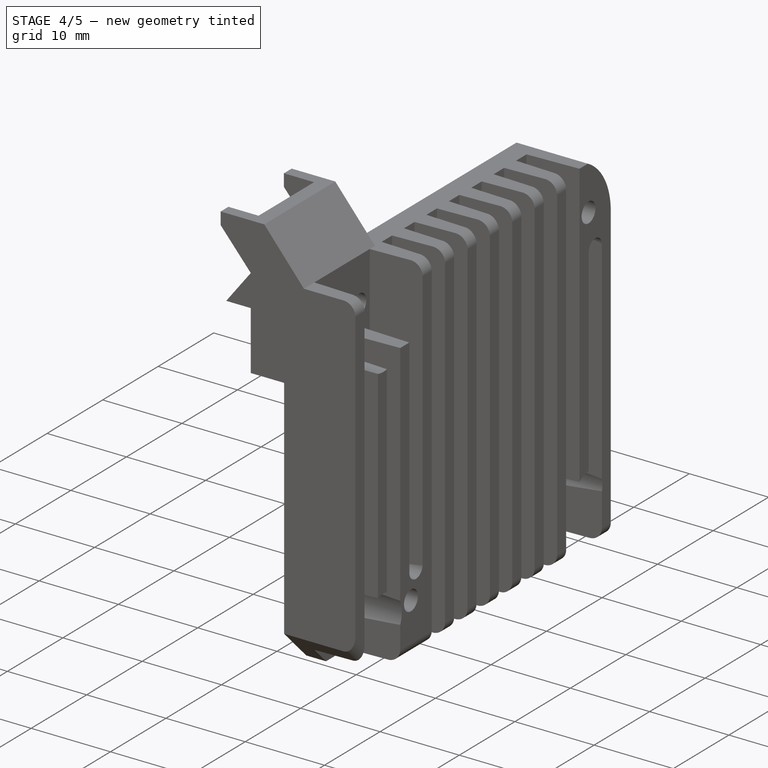
[diagram: stage 4 of 5 — iso view after this stage's code; geometry added in this stage tinted green]
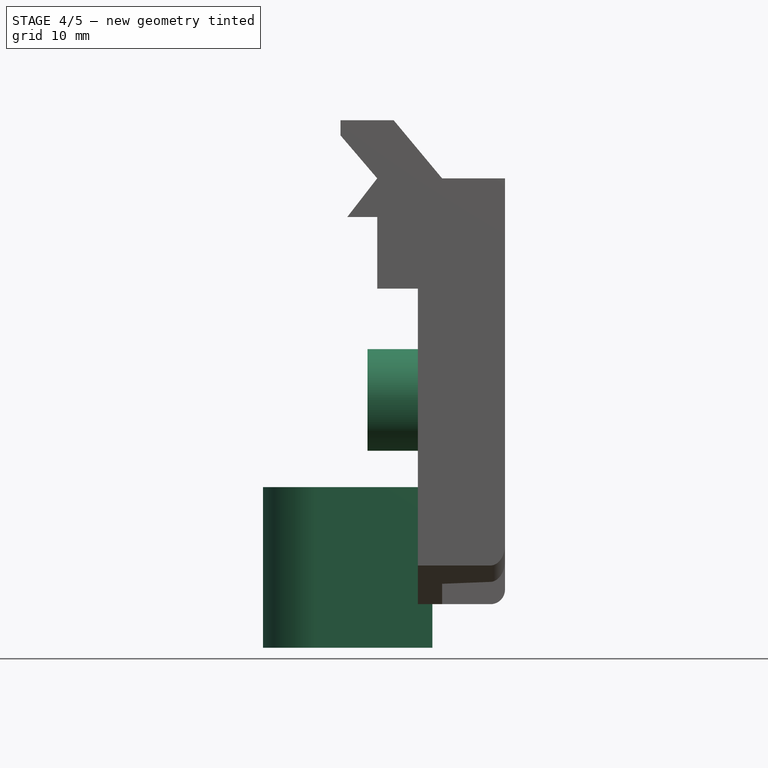
[diagram: stage 4 of 5 — front view after this stage's code; geometry added in this stage tinted green]
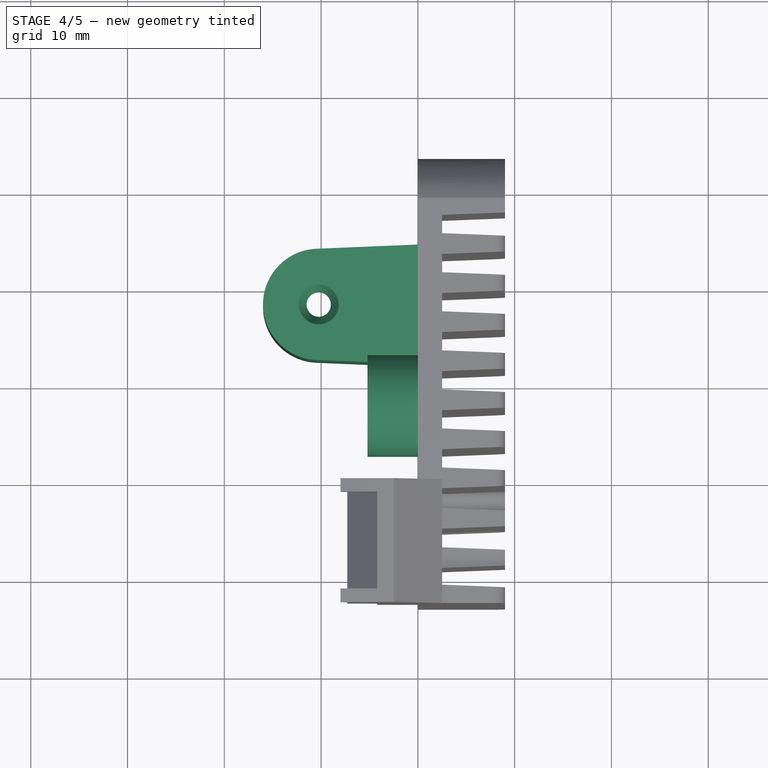
[diagram: stage 4 of 5 — top view after this stage's code; geometry added in this stage tinted green]
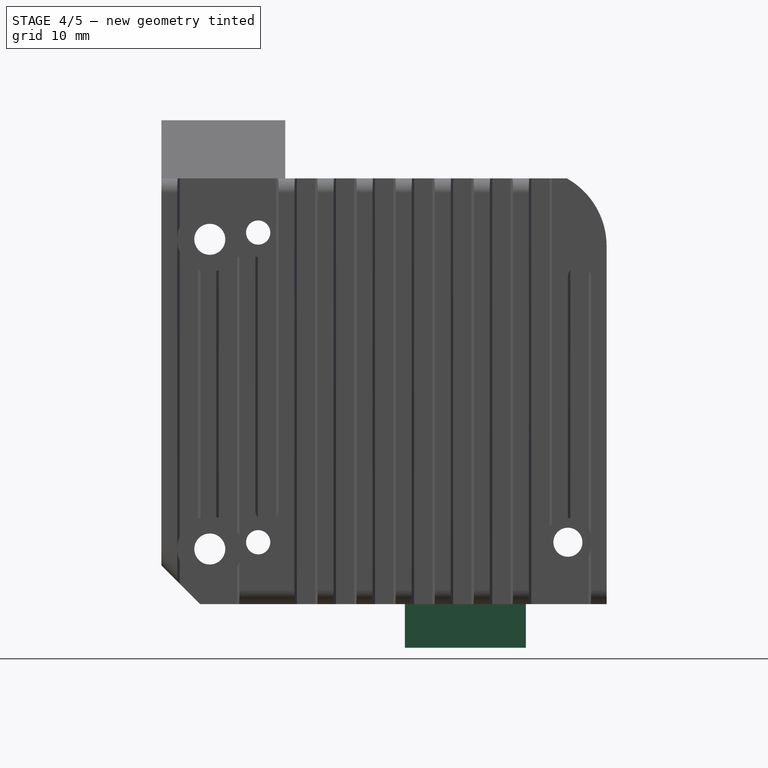
[diagram: stage 4 of 5 — right view after this stage's code; geometry added in this stage tinted green]
FEATURE [Sketcher::SketchObject] Sketch011
  AttachmentSupport = -> [Pocket004]
  ExternalGeometry = -> [Sketch]
  FullyConstrained = true
  MapMode = 5
  Placement = pos=(0,0,-22) rot=(0.707107,0.707107,0;3.14159rad)
  sketch-geometry (6):
    g0: LineSegment StartX=2.16258 StartY=1.5 StartZ=0 EndX=2.66258 EndY=-10.4849 EndZ=0
    g1: ArcOfCircle CenterX=8.41258 CenterY=-10.245 CenterZ=0 NormalX=0 NormalY=0 NormalZ=1 AngleXU=0 Radius=5.755 StartAngle=3.18329 EndAngle=6.24149
    g2: LineSegment StartX=14.1626 StartY=-10.4849 StartZ=0 EndX=14.6626 EndY=1.5 EndZ=0
    g3: LineSegment StartX=14.6626 StartY=1.5 StartZ=0 EndX=2.16258 EndY=1.5 EndZ=0
    g4: GeomPoint X=8.41258 Y=-16 Z=0
    g5: GeomPoint X=14.6 Y=0 Z=0
  constraints (15):
    c: Tangent(g0,g1) = -1.5708
    c: Tangent(g1,g2) = -1.5708
    c: Coincident(g2,g3)
    c: Coincident(g3,g0)
    c: Horizontal(g3)
    c: DistanceX(g3,g3) = 12.5
    c: DistanceX(g0,g1) = 11.5
    c: Equal(g0,g2)
    c: Distance(g3,g-1) = 1.5
    c: PointOnObject(g4,g1)
    c: Vertical(g1,g4)
    c: Distance(g4,g3) = 17.5
    c: PointOnObject(g5,g2)
    c: PointOnObject(g5,g-1)
    c: DistanceX(g5,g-3) = 8.4
FEATURE [PartDesign::Pad] Pad004  label="Heatbreak Mount"
  BaseFeature = -> Pocket004
  Direction = (0,0,-1)
  Length = 4.5
  Length2 = 12.1
  Placement = pos=(0,0,0) rot=(0.57735,0.57735,0.57735;2.0944rad)
  Profile = -> Sketch011
  ReferenceAxis = -> Sketch011 [N_Axis]
  Refine = true
  Suppressed = false
  Type = 4
FEATURE [Sketcher::SketchObject] Sketch012
  AttachmentSupport = -> [Pad004]
  ExternalGeometry = -> [Pad004]
  FullyConstrained = true
  MapMode = 5
  Placement = pos=(0,0,-26.5) rot=(0.707107,0.707107,0;3.14159rad)
  sketch-geometry (1):
    g0: Circle CenterX=8.41258 CenterY=-10.245 CenterZ=0 NormalX=0 NormalY=0 NormalZ=1 AngleXU=0 Radius=3.9
  constraints (2):
    c: Coincident(g0,g-3)
    c: Diameter(g0) = 7.8
FEATURE [PartDesign::Pocket] Pocket005  label="Heatbreak Hole"
  BaseFeature = -> Pad004
  Direction = (0,0,1)
  Length = 15.2
  Length2 = 5
  Placement = pos=(0,0,0) rot=(0.57735,0.57735,0.57735;2.0944rad)
  Profile = -> Sketch012
  ReferenceAxis = -> Sketch012 [N_Axis]
  Refine = true
  Suppressed = false
  Type = 0
FEATURE [Sketcher::SketchObject] Sketch013
  AttachmentSupport = -> [Pocket005]
  ExternalGeometry = -> [Pocket005]
  FullyConstrained = true
  MapMode = 5
  Placement = pos=(0,0,-11.3) rot=(0.707107,0.707107,0;3.14159rad)
  sketch-geometry (1):
    g0: Circle CenterX=8.41258 CenterY=-10.245 CenterZ=0 NormalX=0 NormalY=0 NormalZ=1 AngleXU=0 Radius=1.25
  constraints (2):
    c: Coincident(g0,g-3)
    c: Diameter(g0) = 2.5
FEATURE [PartDesign::Pocket] Pocket006  label="Filament Hole"
  BaseFeature = -> Pocket005
  Direction = (0,0,1)
  Length = 5
  Length2 = 5
  Placement = pos=(0,0,0) rot=(0.57735,0.57735,0.57735;2.0944rad)
  Profile = -> Sketch013
  ReferenceAxis = -> Sketch013 [N_Axis]
  Refine = true
  Suppressed = false
  TaperAngle = 30
  Type = 0
FEATURE [Sketcher::SketchObject] Sketch014
  AttachmentSupport = -> [Pocket006]
  ExternalGeometry = -> [Pocket006,Sketch]
  FullyConstrained = true
  MapMode = 5
  Placement = pos=(0,0,0) rot=(0.57735,0.57735,-0.57735;4.18879rad)
  sketch-geometry (2):
    g0: Circle CenterX=-2.25 CenterY=0.9 CenterZ=0 NormalX=0 NormalY=0 NormalZ=1 AngleXU=0 Radius=5.25
    g1: Circle CenterX=-2.25 CenterY=0.9 CenterZ=0 NormalX=0 NormalY=0 NormalZ=1 AngleXU=0 Radius=3
  constraints (5):
    c: Distance(g0,g-2) = 2.25
    c: DistanceY(g-1,g0) = 0.9
    c: Diameter(g0) = 10.5
    c: Coincident(g1,g0)
    c: Diameter(g1) = 6
FEATURE [PartDesign::Pad] Pad005  label="Axle Mount"
  BaseFeature = -> Pocket006
  Direction = (-1,0,0)
  Length = 5.2
  Length2 = 10
  Placement = pos=(0,0,0) rot=(0.57735,0.57735,0.57735;2.0944rad)
  Profile = -> Sketch014
  ReferenceAxis = -> Sketch014 [N_Axis]
  Refine = true
  Suppressed = false
  Type = 0
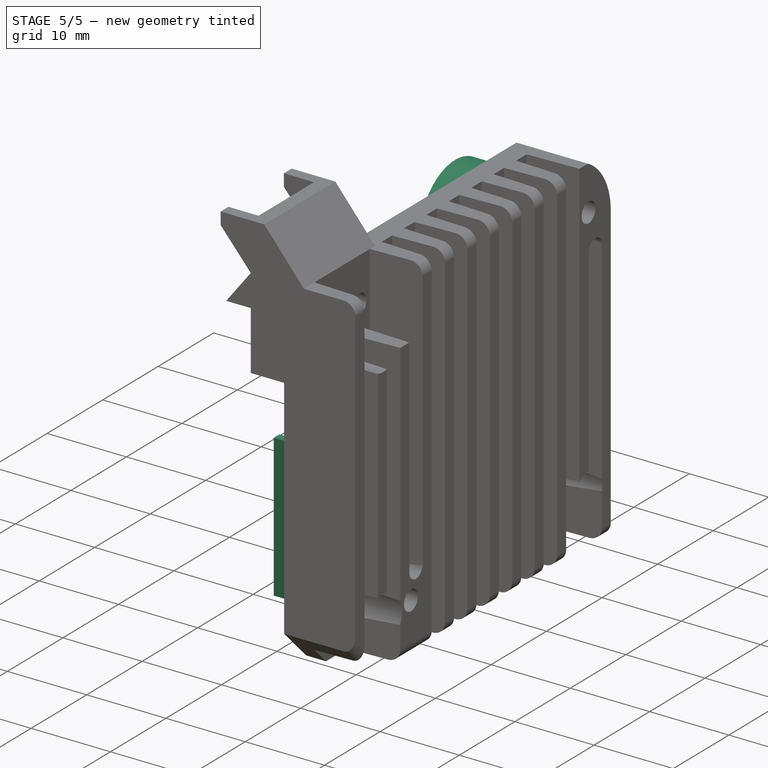
[diagram: stage 5 of 5 — iso view after this stage's code; geometry added in this stage tinted green]
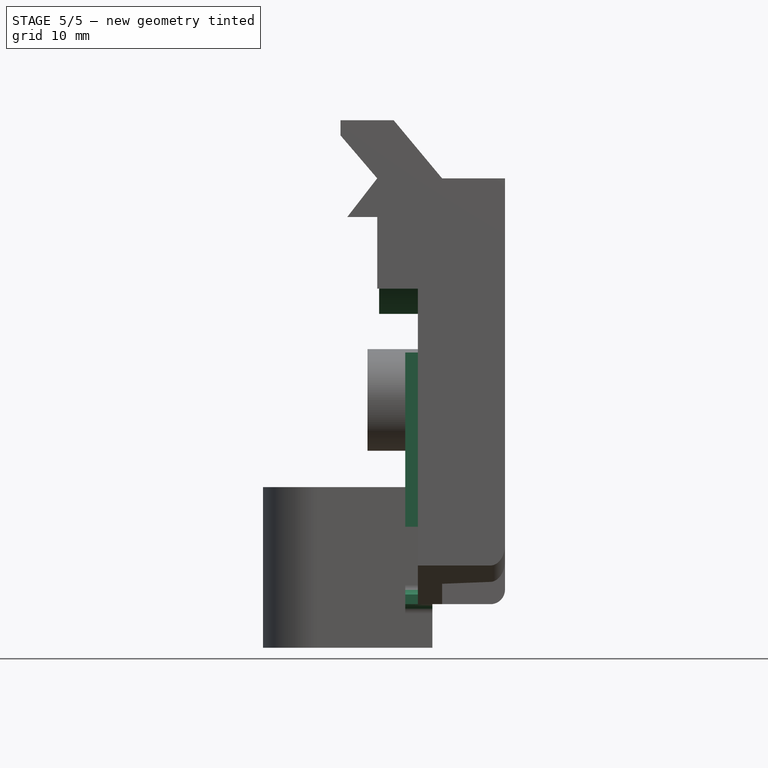
[diagram: stage 5 of 5 — front view after this stage's code; geometry added in this stage tinted green]
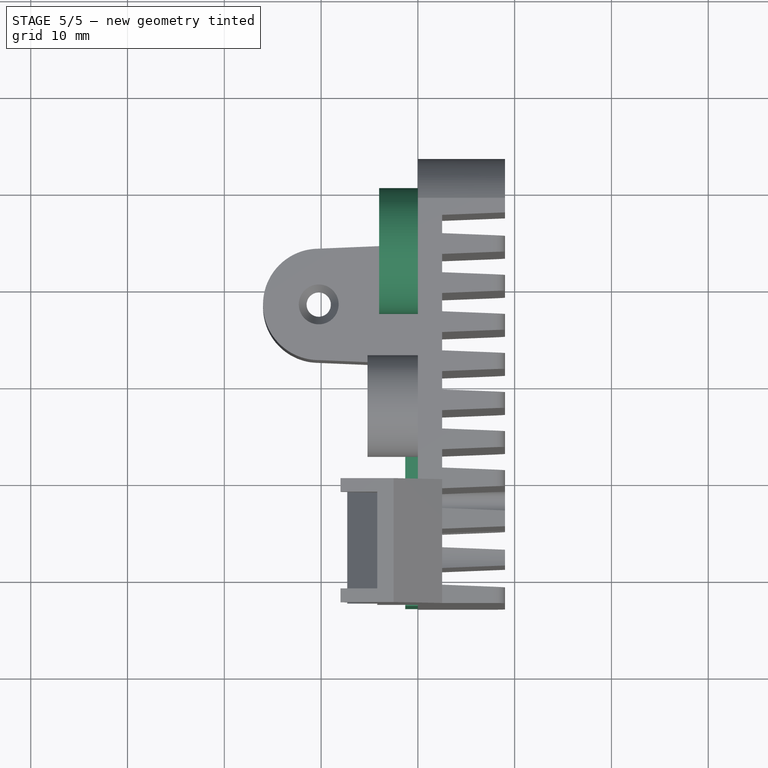
[diagram: stage 5 of 5 — top view after this stage's code; geometry added in this stage tinted green]
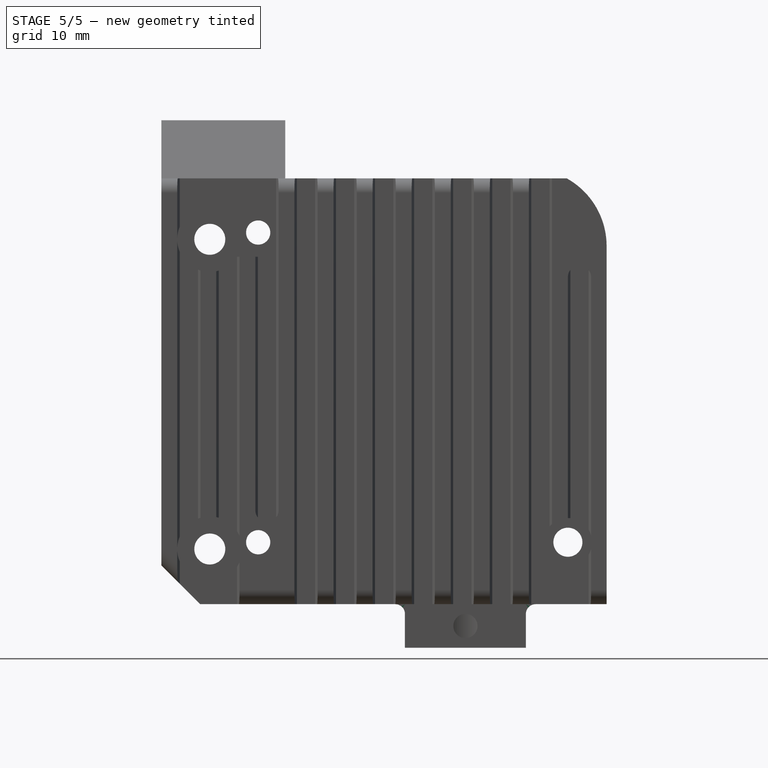
[diagram: stage 5 of 5 — right view after this stage's code; geometry added in this stage tinted green]
FEATURE [Sketcher::SketchObject] Sketch015
  AttachmentSupport = -> [Pad005]
  ExternalGeometry = -> [Sketch]
  FullyConstrained = true
  MapMode = 5
  Placement = pos=(0,0,0) rot=(0.57735,0.57735,-0.57735;4.18879rad)
  sketch-geometry (2):
    g0: Circle CenterX=13.5 CenterY=-14.5 CenterZ=0 NormalX=0 NormalY=0 NormalZ=1 AngleXU=0 Radius=6.5
    g1: Circle CenterX=13.5 CenterY=-14.5 CenterZ=0 NormalX=0 NormalY=0 NormalZ=1 AngleXU=0 Radius=4.95
  constraints (5):
    c: Distance(g0,g-4) = 3
    c: Distance(g0,g-3) = 1
    c: Diameter(g0) = 13
    c: Coincident(g1,g0)
    c: Diameter(g1) = 9.9
FEATURE [PartDesign::Pad] Pad006  label="Bearing Mount"
  BaseFeature = -> Pad005
  Direction = (-1,0,0)
  Length = 4
  Length2 = 10
  Placement = pos=(0,0,0) rot=(0.57735,0.57735,0.57735;2.0944rad)
  Profile = -> Sketch015
  ReferenceAxis = -> Sketch015 [N_Axis]
  Refine = true
  Suppressed = false
  Type = 0
FEATURE [Sketcher::SketchObject] Sketch016
  AttachmentSupport = -> [Pad006]
  ExternalGeometry = -> [Pad006]
  FullyConstrained = false
  MapMode = 5
  Placement = pos=(0,0,0) rot=(0.57735,0.57735,-0.57735;4.18879rad)
  sketch-geometry (8):
    g0: LineSegment StartX=8.41258 StartY=21 StartZ=0 EndX=-16.0748 EndY=21 EndZ=0
    g1: LineSegment StartX=-16.0748 StartY=21 StartZ=0 EndX=-16.0748 EndY=22 EndZ=0
    g2: LineSegment StartX=-16.0748 StartY=22 StartZ=0 EndX=8.41258 EndY=22 EndZ=0
    g3: LineSegment StartX=-23 StartY=14 StartZ=0 EndX=-22 EndY=14 EndZ=0
    g4: LineSegment StartX=-22 StartY=14 StartZ=0 EndX=-22 EndY=-4 EndZ=0
    g5: LineSegment StartX=-22 StartY=-4 StartZ=0 EndX=-23 EndY=-4 EndZ=0
    g6: LineSegment StartX=-23 StartY=-4 StartZ=0 EndX=-23 EndY=14 EndZ=0
    g7: LineSegment StartX=8.41258 StartY=21 StartZ=0 EndX=8.41258 EndY=22 EndZ=0
  constraints (22):
    c: Horizontal(g0)
    c: Coincident(g0,g1)
    c: PointOnObject(g1,g-3)
    c: Vertical(g1)
    c: Coincident(g1,g2)
    c: PointOnObject(g3,g-4)
    c: Horizontal(g3)
    c: Coincident(g3,g4)
    c: Vertical(g4)
    c: Coincident(g4,g5)
    c: PointOnObject(g5,g-4)
    c: Horizontal(g5)
    c: Coincident(g5,g6)
    c: Coincident(g6,g3)
    c: Equal(g3,g1)
    c: Distance(g1,g1) = 1
    c: DistanceY(g4,g4) = 18
    c: DistanceY(g-4,g5) = 6.6
    c: Symmetric(g-3,g-5,g2)
    c: Coincident(g0,g7)
    c: Coincident(g7,g2)
    c: Vertical(g7)
FEATURE [PartDesign::Pad] Pad007
  BaseFeature = -> Pad006
  Direction = (-1,0,0)
  Length = 1.3
  Length2 = 10
  Placement = pos=(0,0,0) rot=(0.57735,0.57735,0.57735;2.0944rad)
  Profile = -> Sketch016
  ReferenceAxis = -> Sketch016 [N_Axis]
  Refine = true
  Suppressed = false
  Type = 0
FEATURE [PartDesign::Fillet] Fillet001
  Base = -> Pad007 [Edge274,Edge286,Edge282]
  BaseFeature = -> Pad007
  Placement = pos=(0,0,0) rot=(0.57735,0.57735,0.57735;2.0944rad)
  Radius = 1
  Refine = true
  SupportTransform = false
  Suppressed = false
  UseAllEdges = false
FEATURE [Sketcher::SketchObject] Sketch017
  AttachmentSupport = -> [Fillet001]
  ExternalGeometry = -> [Fillet001]
  FullyConstrained = false
  MapMode = 5
  Placement = pos=(1.5,-4e-16,0) rot=(0.57735,0.57735,0.57735;2.0944rad)
  sketch-geometry (1):
    g0: Circle CenterX=8.41258 CenterY=-24.25 CenterZ=0 NormalX=0 NormalY=0 NormalZ=1 AngleXU=0 Radius=1.6
  constraints (1):
    c: Symmetric(g-4,g-3,g0)
FEATURE [PartDesign::Hole] Hole002  label="Grubscrew Hole"
  BaseFeature = -> Fillet001
  CustomThreadClearance = 0
  Depth = 10
  DepthType = 0
  Diameter = 2.5
  DrillForDepth = false
  DrillPoint = 1
  DrillPointAngle = 118
  HoleCutCountersinkAngle = 90
  HoleCutCustomValues = false
  HoleCutDepth = 0
  HoleCutDiameter = 6.1
  HoleCutType = 0
  ModelThread = false
  Placement = pos=(0,0,0) rot=(0.57735,0.57735,0.57735;2.0944rad)
  Profile = -> Sketch017
  Refine = true
  Suppressed = false
  Tapered = false
  TaperedAngle = 90
  ThreadClass = 0
  ThreadDepth = 10
  ThreadDepthType = 0
  ThreadDirection = 0
  ThreadFit = 0
  ThreadSize = 9
  ThreadType = 1
  Threaded = true
  UseCustomThreadClearance = false
FEATURE [PartDesign::Body] Body
  Group = -> [Sketch,Sketch001,Pad,Sketch002,Pocket,Sketch003,Pad001,Sketch004,Sketch005,Pocket001,Sketch006,Pocket002,LinearPattern,Sketch007,Pad002,Sketch008,Pocket003,Hole,Hole001,Fillet,Sketch009,Pad003,Sketch010,Pocket004,Sketch011,Pad004,Sketch012,Pocket005,Sketch013,Pocket006,Sketch014,Pad005,Sketch015,Pad006,Sketch016,Pad007,Fillet001,Sketch017,Hole002]
  Origin = -> Origin
  Tip = -> Hole002
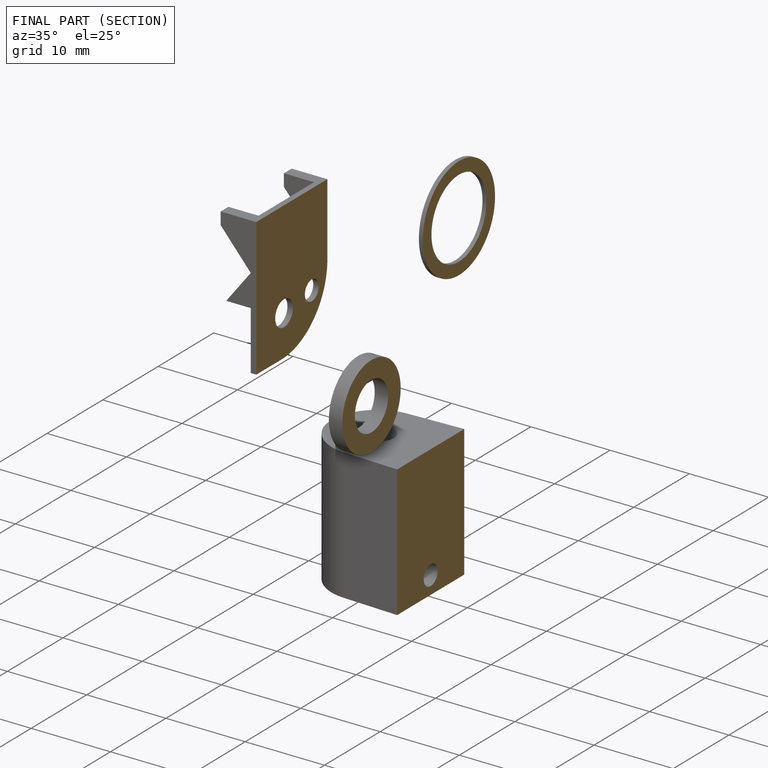
[diagram: finished part — half-section view (interior)]
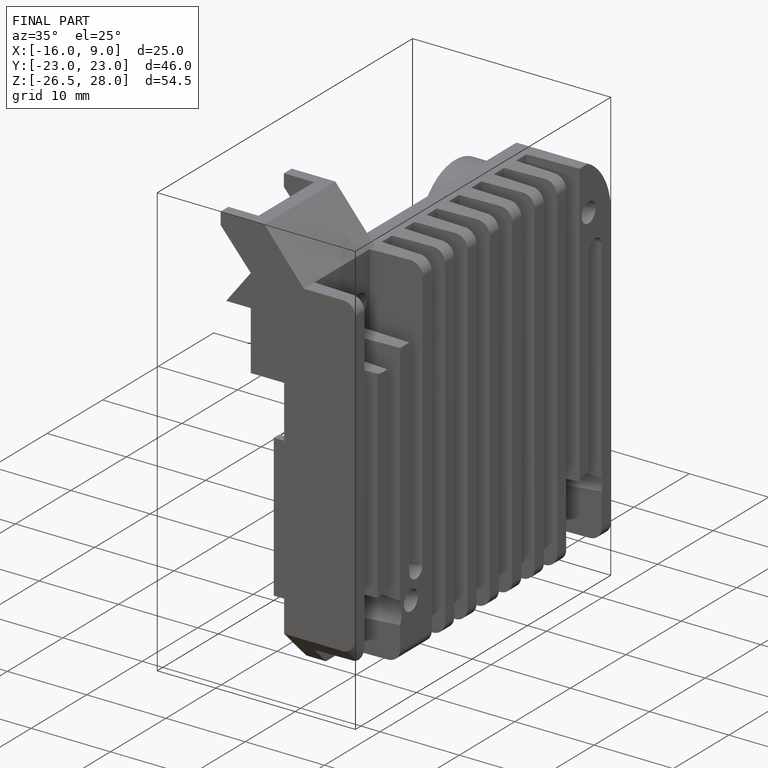
[diagram: finished part — iso view with bounding-box wireframe]
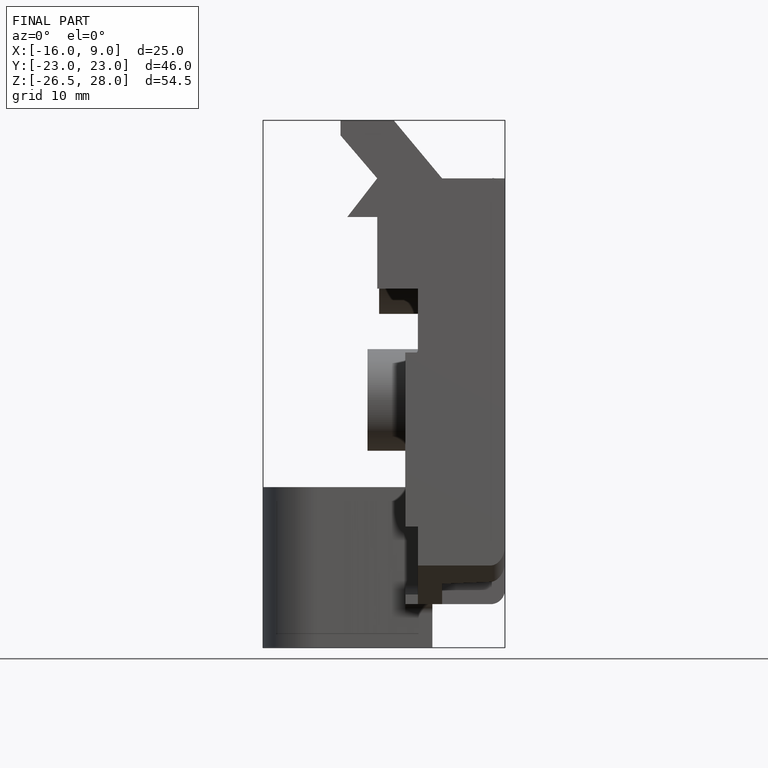
[diagram: finished part — front view with bounding-box wireframe]
